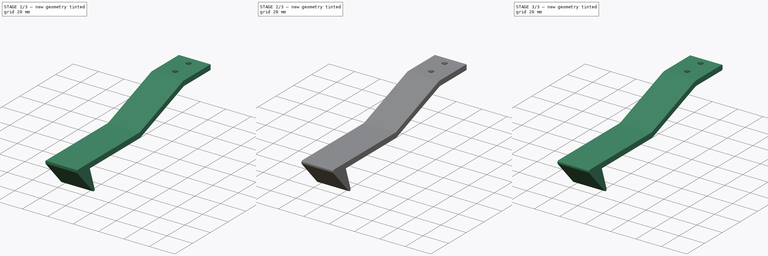
[diagram: build sequence overview — one tinted view per stage of 3, left to right]
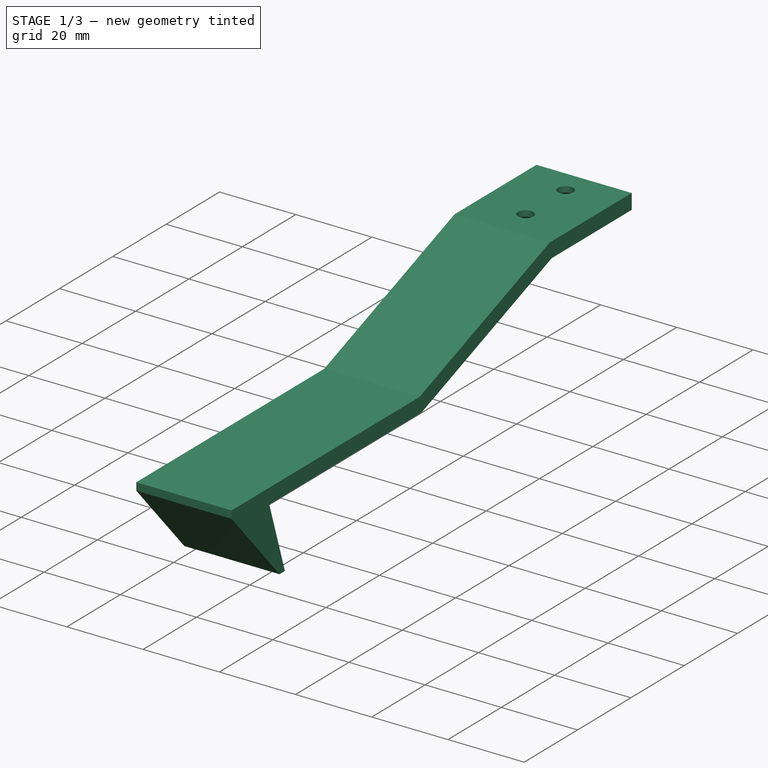
[diagram: stage 1 of 3 — iso view after this stage's code; geometry added in this stage tinted green]
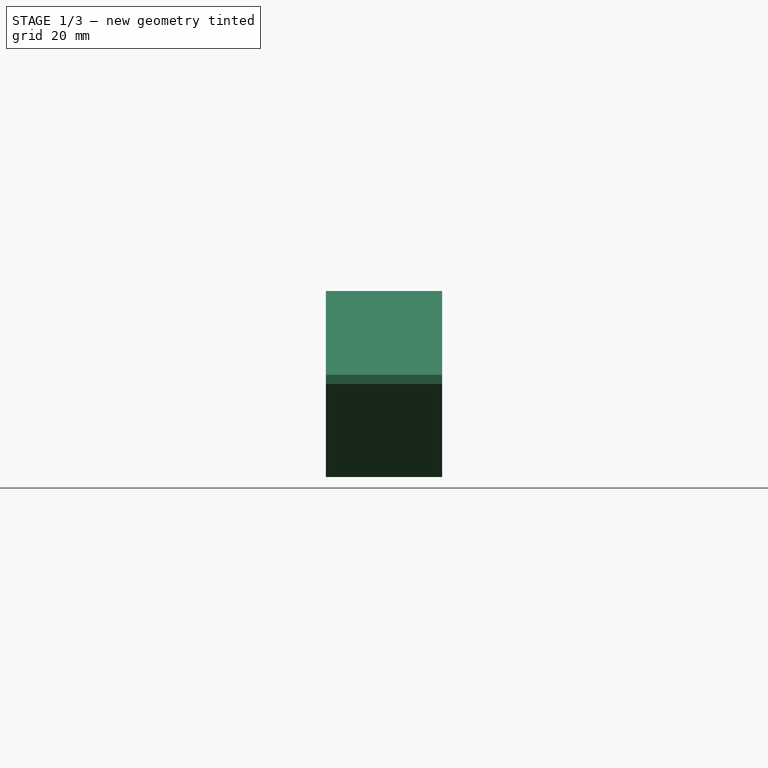
[diagram: stage 1 of 3 — front view after this stage's code; geometry added in this stage tinted green]
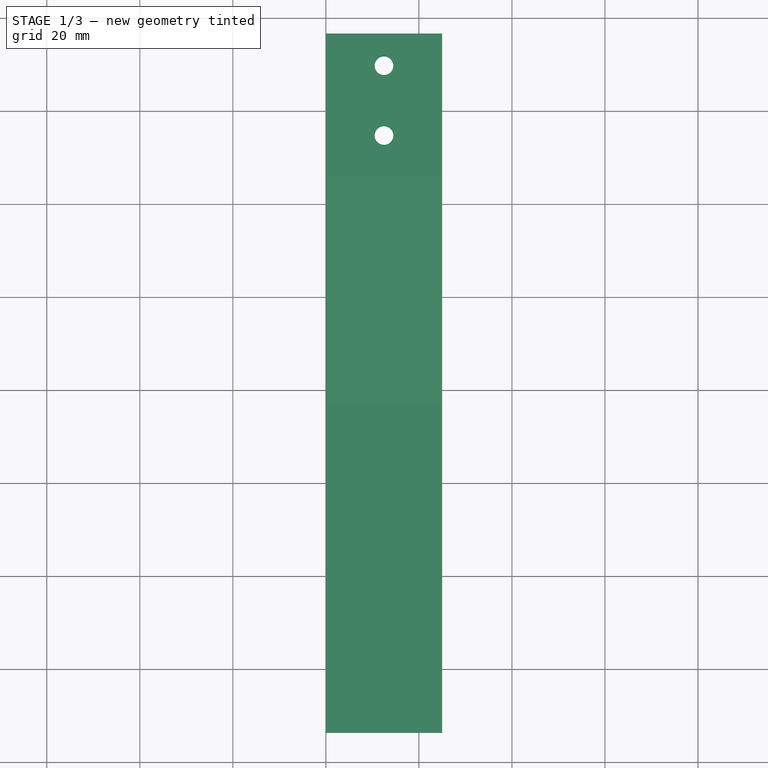
[diagram: stage 1 of 3 — top view after this stage's code; geometry added in this stage tinted green]
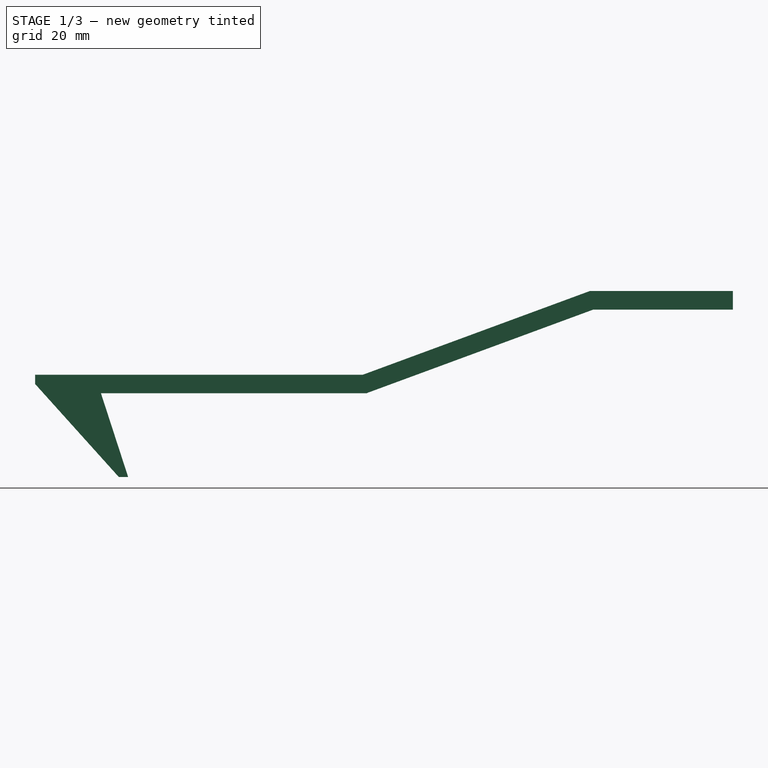
[diagram: stage 1 of 3 — right view after this stage's code; geometry added in this stage tinted green]
FCSTD DOCUMENT  (FreeCAD 0.20RUnknown)
Label: SchubladenSicherung
License: All rights reserved
LicenseURL: http://en.wikipedia.org/wiki/All_rights_reserved
objects: Sketcher::SketchObject×3, PartDesign::Fillet×3, PartDesign::Pad×1, PartDesign::Hole×1, PartDesign::Body×1
note: 14 computed .brp shape members not serialized (recipe doc carries the construction recipe); baked Part::Feature solids carry a one-line shape summary decoded from their .brp

FEATURE [Sketcher::SketchObject] Sketch  label="Schublade"
  FullyConstrained = true
  MapMode = 5
  Placement = pos=(0,0,0) rot=(0.57735,0.57735,0.57735;2.0944rad)
  Support = -> [YZ_Plane]
  sketch-geometry (8):
    g0: LineSegment StartX=53 StartY=0 StartZ=0 EndX=83 EndY=0 EndZ=0
    g1: LineSegment StartX=83 StartY=0 StartZ=0 EndX=83 EndY=-6 EndZ=0
    g2: LineSegment StartX=83 StartY=-6 StartZ=0 EndX=53 EndY=-6 EndZ=0
    g3: LineSegment StartX=53 StartY=-6 StartZ=0 EndX=53 EndY=0 EndZ=0
    g4: LineSegment StartX=42 StartY=-22 StartZ=0 EndX=26 EndY=-22 EndZ=0
    g5: LineSegment StartX=26 StartY=-22 StartZ=0 EndX=26 EndY=-52 EndZ=0
    g6: LineSegment StartX=26 StartY=-52 StartZ=0 EndX=42 EndY=-52 EndZ=0
    g7: LineSegment StartX=42 StartY=-52 StartZ=0 EndX=42 EndY=-22 EndZ=0
  constraints (24):
    c: Coincident(g0,g1)
    c: Coincident(g1,g2)
    c: Coincident(g2,g3)
    c: Coincident(g3,g0)
    c: Horizontal(g0)
    c: Horizontal(g2)
    c: Vertical(g1)
    c: Vertical(g3)
    c: PointOnObject(g0,g-1)
    c: DistanceX(g2,g2) = 30
    c: DistanceY(g1,g1) = 6
    c: DistanceX(g-1,g0) = 53
    c: Coincident(g4,g5)
    c: Coincident(g5,g6)
    c: Coincident(g6,g7)
    c: Coincident(g7,g4)
    c: Horizontal(g4)
    c: Horizontal(g6)
    c: Vertical(g5)
    c: Vertical(g7)
    c: DistanceX(g-1,g4) = 42
    c: DistanceY(g4,g-1) = 22
    c: DistanceX(g6,g6) = 16
    c: DistanceY(g5,g5) = 30
FEATURE [Sketcher::SketchObject] Sketch001  label="Snap"
  ExternalGeometry = -> [Sketch]
  FullyConstrained = true
  MapMode = 5
  Placement = pos=(0,0,0) rot=(0.57735,0.57735,0.57735;2.0944rad)
  Support = -> [YZ_Plane]
  expr: Constraints[13] = .Constraints.width - 2mm
  expr: Constraints[15] = .Constraints.width
  expr: Constraints[24] = .Constraints.width
  expr: Constraints[30] = .Constraints.snap / 2
  expr: Constraints[38] = .Constraints.width - 2mm
  sketch-geometry (13):
    g0: LineSegment StartX=6 StartY=-20 StartZ=0 EndX=6 EndY=-18 EndZ=0
    g1: LineSegment StartX=76.4705 StartY=-18 StartZ=0 EndX=125.286 EndY=0 EndZ=0
    g2: LineSegment StartX=125.286 StartY=0 StartZ=0 EndX=156 EndY=0 EndZ=0
    g3: LineSegment StartX=156 StartY=0 StartZ=0 EndX=156 EndY=-4 EndZ=0
    g4: LineSegment StartX=156 StartY=-4 StartZ=0 EndX=126 EndY=-4 EndZ=0
    g5: LineSegment StartX=126 StartY=-4 StartZ=0 EndX=77.1845 EndY=-22 EndZ=0
    g6: LineSegment StartX=20.1514 StartY=-22 StartZ=0 EndX=77.1845 EndY=-22 EndZ=0
    g7: LineSegment StartX=76.4705 StartY=-18 StartZ=0 EndX=6 EndY=-18 EndZ=0
    g8: LineSegment StartX=76.4705 StartY=-18 StartZ=0 EndX=77.8544 EndY=-21.753 EndZ=0
    g9: LineSegment StartX=83 StartY=-6 StartZ=0 EndX=86.1137 EndY=-14.4442 EndZ=0
    g10: LineSegment StartX=26 StartY=-40 StartZ=0 EndX=20.1514 EndY=-22 EndZ=0
    g11: LineSegment StartX=26 StartY=-40 StartZ=0 EndX=24 EndY=-40 EndZ=0
    g12: LineSegment StartX=24 StartY=-40 StartZ=0 EndX=6 EndY=-20 EndZ=0
  constraints (39):
    c: PointOnObject(g11,g-5)
    c: Coincident(g12,g0)
    c: Vertical(g0)
    c: PointOnObject(g1,g-1)
    c: Coincident(g1,g2)
    c: Horizontal(g2)
    c: Coincident(g2,g3)
    c: Vertical(g3)
    c: Coincident(g3,g4)
    c: Horizontal(g4)
    c: Coincident(g4,g5)
    c: Parallel(g1,g5)
    c: DistanceY(g11,g-5) = 18  'snap'
    c: DistanceY(g0,g0) = 2
    c: DistanceX(g0,g-5) = 20
    c: DistanceY(g3,g3) = 4
    c: Coincident(g6,g5)
    c: Horizontal(g6)
    c: Coincident(g1,g7)
    c: Coincident(g7,g0)
    c: Horizontal(g7)
    c: Coincident(g8,g1)
    c: PointOnObject(g8,g5)
    c: Perpendicular(g8,g1)
    c: Distance(g8) = 4
    c: DistanceX(g0,g2) = 150
    c: DistanceX(g4,g4) = 30
    c: Coincident(g9,g-3)
    c: PointOnObject(g9,g1)
    c: Perpendicular(g1,g9)
    c: Distance(g9) = 9
    c: Coincident(g10,g11)
    c: Coincident(g6,g10)
    c: Angle(g10,g-5) = -0.314159
    c: PointOnObject(g-4,g6)
    c: DistanceY(g5,g1) = 4  'width'
    c: Coincident(g11,g12)
    c: Horizontal(g11)
    c: DistanceX(g11,g11) = 2
FEATURE [PartDesign::Pad] Pad
  Direction = (1,-2e-16,3e-16)
  Length = 25
  Length2 = 10
  Placement = pos=(0,0,0) rot=(0.57735,0.57735,0.57735;2.0944rad)
  Profile = -> Sketch001
  ReferenceAxis = -> Sketch001 [N_Axis]
  Type = 0
FEATURE [Sketcher::SketchObject] Sketch002
  FullyConstrained = false
  MapMode = 5
  Placement = pos=(1.6e-15,-2.2e-15,-4) rot=(0.707107,0.707107,0;3.14159rad)
  sketch-geometry (7):
    g0: Circle CenterX=134.086 CenterY=12.5 CenterZ=0 NormalX=0 NormalY=0 NormalZ=1 AngleXU=0 Radius=2
    g1: Circle CenterX=149.086 CenterY=12.5 CenterZ=0 NormalX=0 NormalY=0 NormalZ=1 AngleXU=0 Radius=2
    g2: LineSegment StartX=134.086 StartY=12.5 StartZ=0 EndX=149.086 EndY=12.5 EndZ=0
    g3: LineSegment StartX=149.086 StartY=12.5 StartZ=0 EndX=149.086 EndY=25 EndZ=0
    g4: LineSegment StartX=149.086 StartY=12.5 StartZ=0 EndX=149.086 EndY=0 EndZ=0
    g5: LineSegment StartX=149.086 StartY=12.5 StartZ=0 EndX=156 EndY=12.5 EndZ=0
    g6: LineSegment StartX=134.086 StartY=12.5 StartZ=0 EndX=127.172 EndY=12.5 EndZ=0
  constraints (16):
    c: Coincident(g2,g0)
    c: Coincident(g2,g1)
    c: Horizontal(g2)
    c: Equal(g0,g1)
    c: DistanceX(g2,g2) = 15
    c: Diameter(g0) = 4
    c: Coincident(g3,g1)
    c: Vertical(g3)
    c: Coincident(g4,g1)
    c: Vertical(g4)
    c: Equal(g3,g4)
    c: Coincident(g5,g1)
    c: Horizontal(g5)
    c: Coincident(g6,g0)
    c: Horizontal(g6)
    c: Equal(g5,g6)
FEATURE [PartDesign::Hole] Hole
  BaseFeature = -> Pad
  CustomThreadClearance = 0
  Depth = 25
  DepthType = 0
  Diameter = 4
  DrillForDepth = false
  DrillPoint = 0
  DrillPointAngle = 118
  HoleCutCountersinkAngle = 90
  HoleCutCustomValues = false
  HoleCutDepth = 3
  HoleCutDiameter = 9
  HoleCutType = 2
  ModelThread = false
  Placement = pos=(0,0,0) rot=(0.57735,0.57735,0.57735;2.0944rad)
  Profile = -> Sketch002
  Tapered = false
  TaperedAngle = 90
  ThreadClass = 0
  ThreadDepth = 25
  ThreadDepthType = 0
  ThreadDirection = 0
  ThreadFit = 1
  ThreadSize = 0
  ThreadType = 0
  Threaded = false
  UseCustomThreadClearance = false
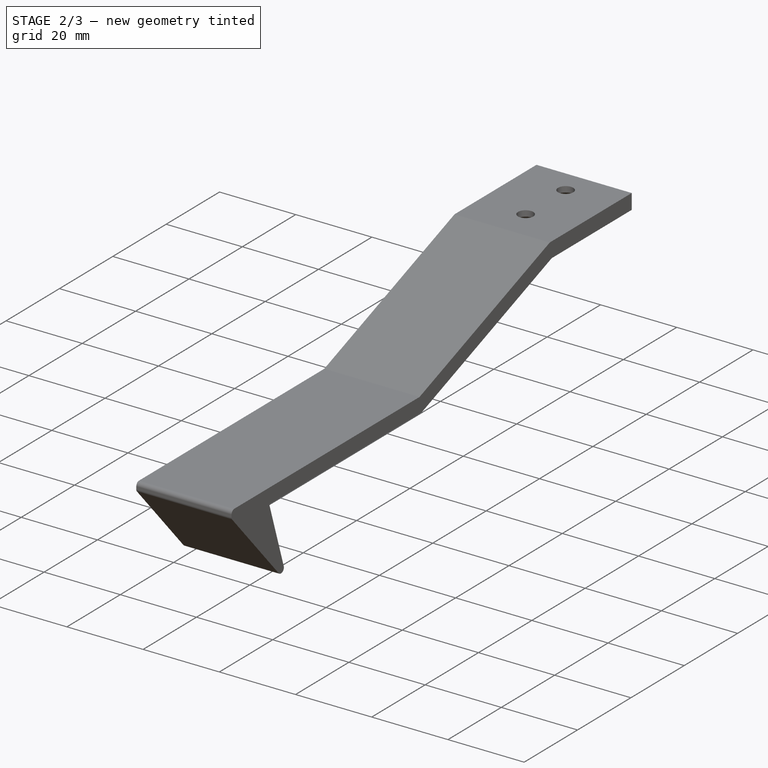
[diagram: stage 2 of 3 — iso view after this stage's code; geometry added in this stage tinted green]
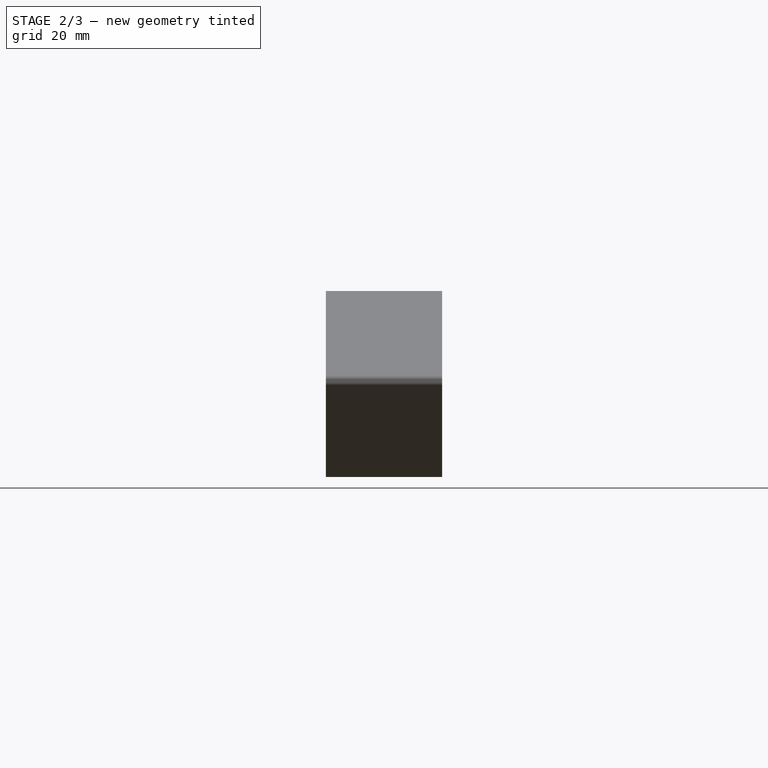
[diagram: stage 2 of 3 — front view after this stage's code; geometry added in this stage tinted green]
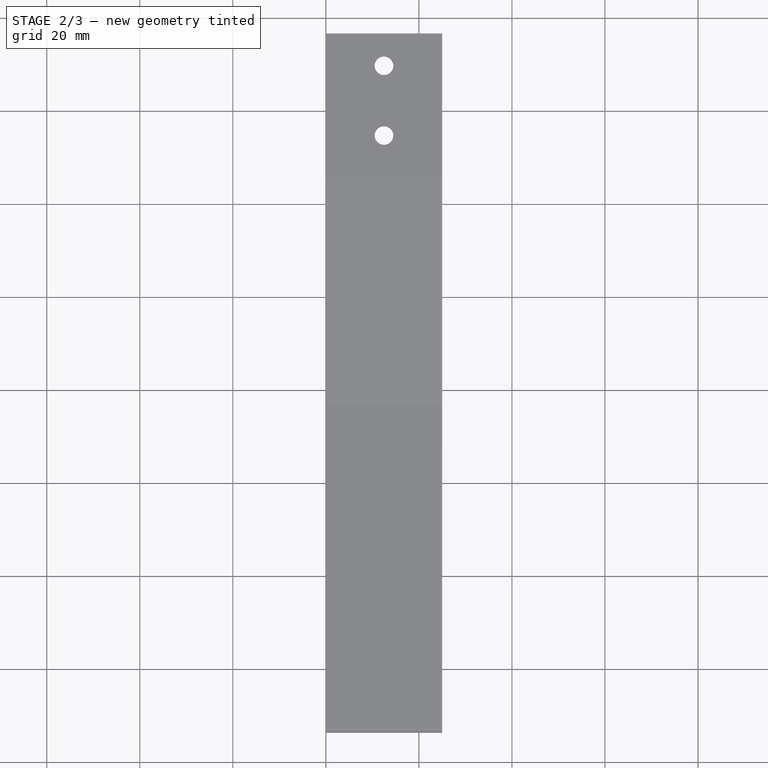
[diagram: stage 2 of 3 — top view after this stage's code; geometry added in this stage tinted green]
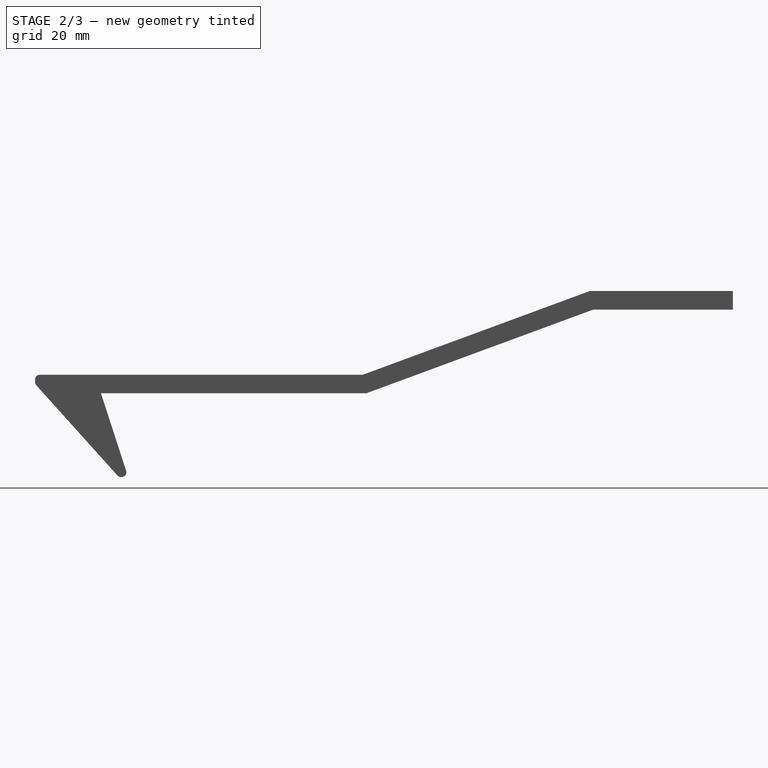
[diagram: stage 2 of 3 — right view after this stage's code; geometry added in this stage tinted green]
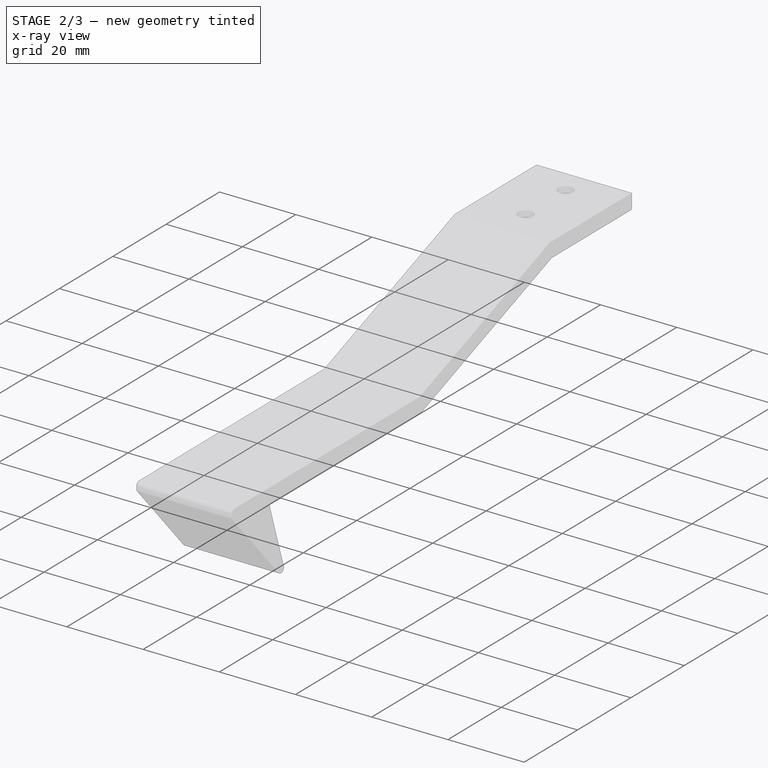
[diagram: stage 2 of 3 — x-ray composite at the iso view; earlier geometry ghosted, this stage's added geometry solid]
FEATURE [PartDesign::Fillet] Fillet  label="FilletHead"
  Base = -> Hole [Edge28,Edge8,Edge2,Edge1]
  BaseFeature = -> Hole
  Placement = pos=(0,0,0) rot=(0.57735,0.57735,0.57735;2.0944rad)
  Radius = 1
  SupportTransform = false
  UseAllEdges = false
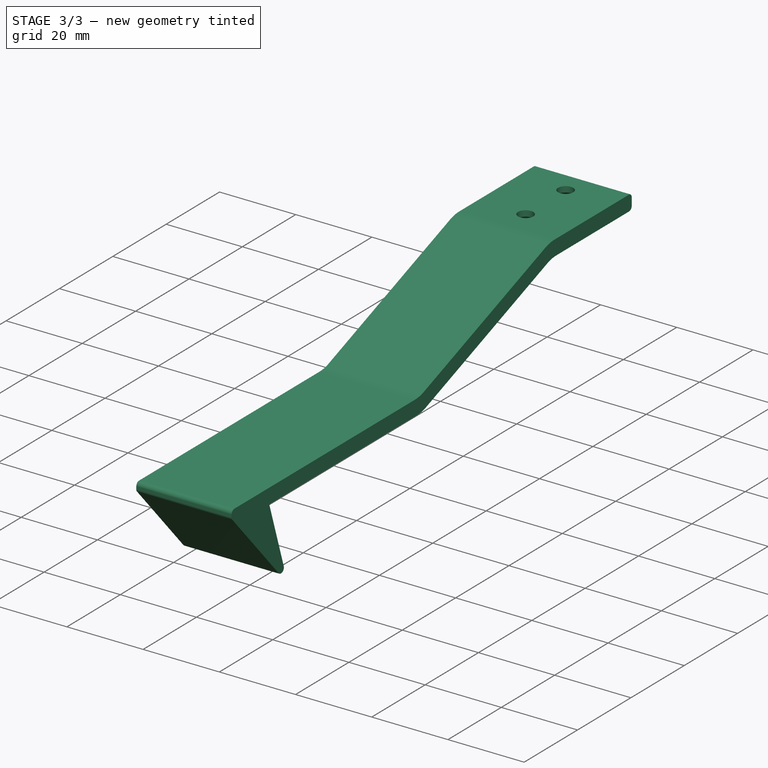
[diagram: stage 3 of 3 — iso view after this stage's code; geometry added in this stage tinted green]
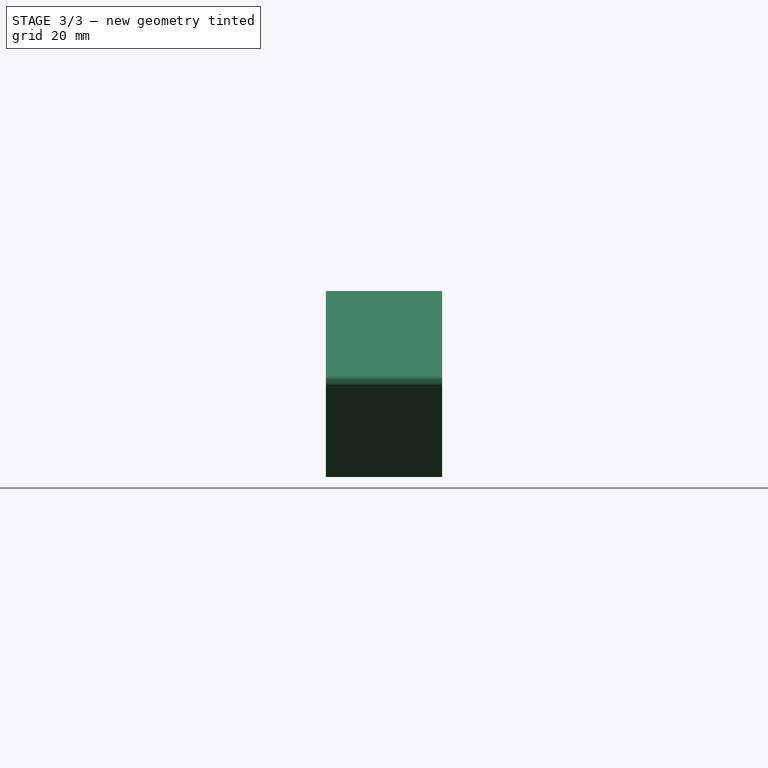
[diagram: stage 3 of 3 — front view after this stage's code; geometry added in this stage tinted green]
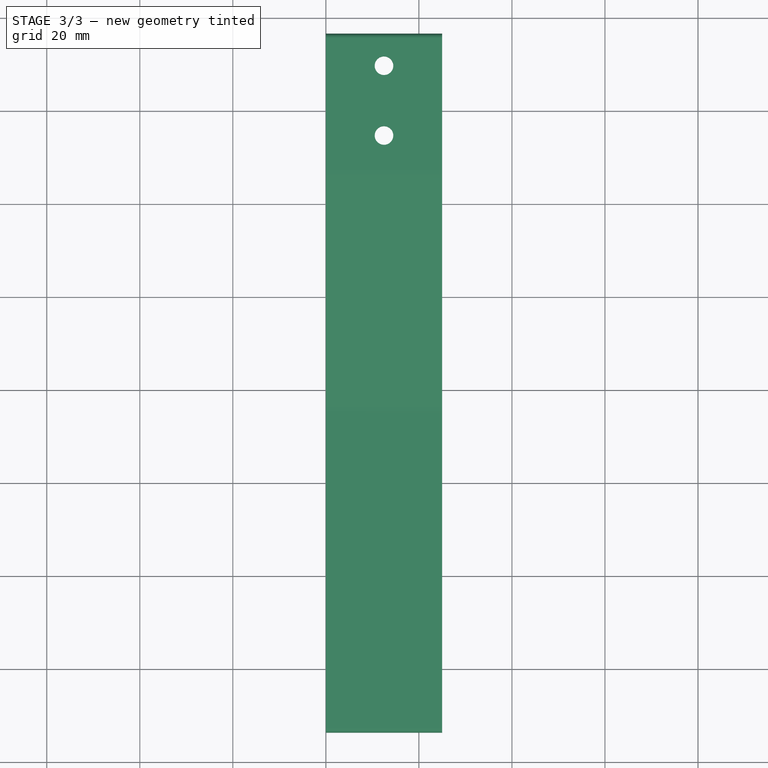
[diagram: stage 3 of 3 — top view after this stage's code; geometry added in this stage tinted green]
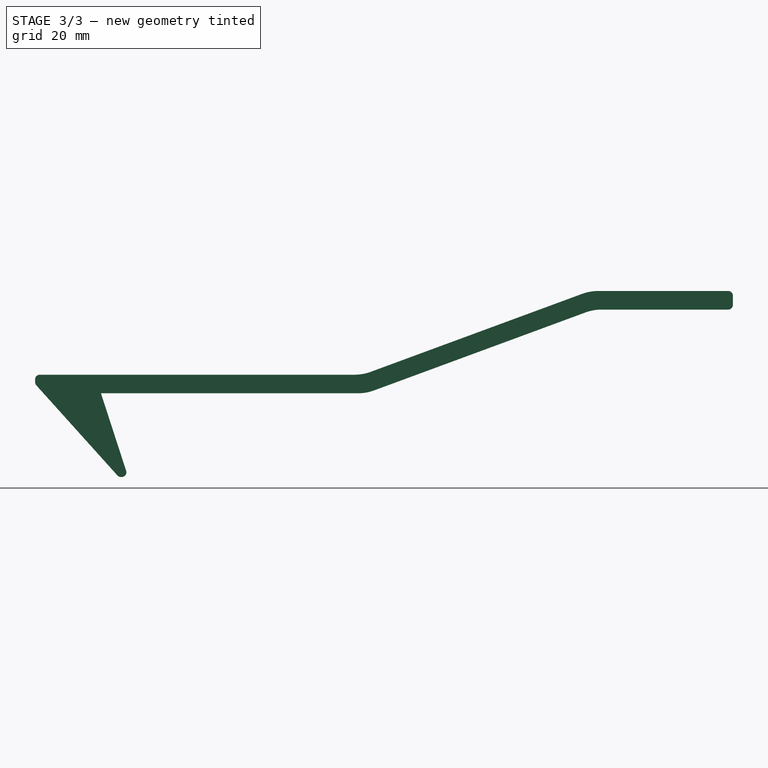
[diagram: stage 3 of 3 — right view after this stage's code; geometry added in this stage tinted green]
FEATURE [PartDesign::Fillet] Fillet001  label="FilletBow"
  Base = -> Fillet [Edge46,Edge47,Edge37,Edge39]
  BaseFeature = -> Fillet
  Placement = pos=(0,0,0) rot=(0.57735,0.57735,0.57735;2.0944rad)
  Radius = 10
  SupportTransform = false
  UseAllEdges = false
FEATURE [PartDesign::Fillet] Fillet002  label="FilletTail"
  Base = -> Fillet001 [Edge35,Edge41]
  BaseFeature = -> Fillet001
  Placement = pos=(0,0,0) rot=(0.57735,0.57735,0.57735;2.0944rad)
  Radius = 1
  SupportTransform = false
  UseAllEdges = false
FEATURE [PartDesign::Body] Body
  Group = -> [Sketch,Sketch001,Pad,Sketch002,Hole,Fillet,Fillet001,Fillet002]
  Origin = -> Origin
  Tip = -> Fillet002
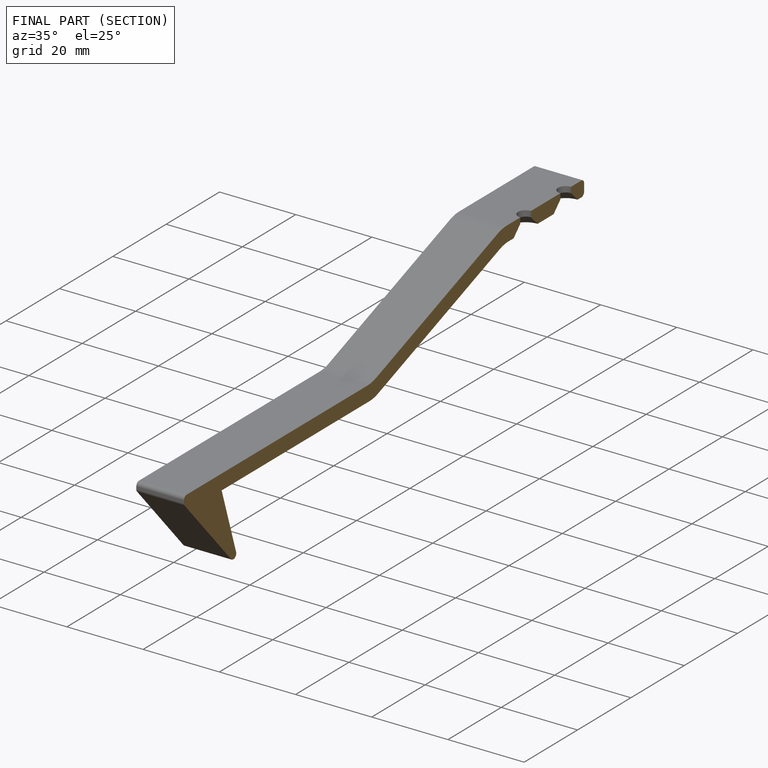
[diagram: finished part — half-section view (interior)]
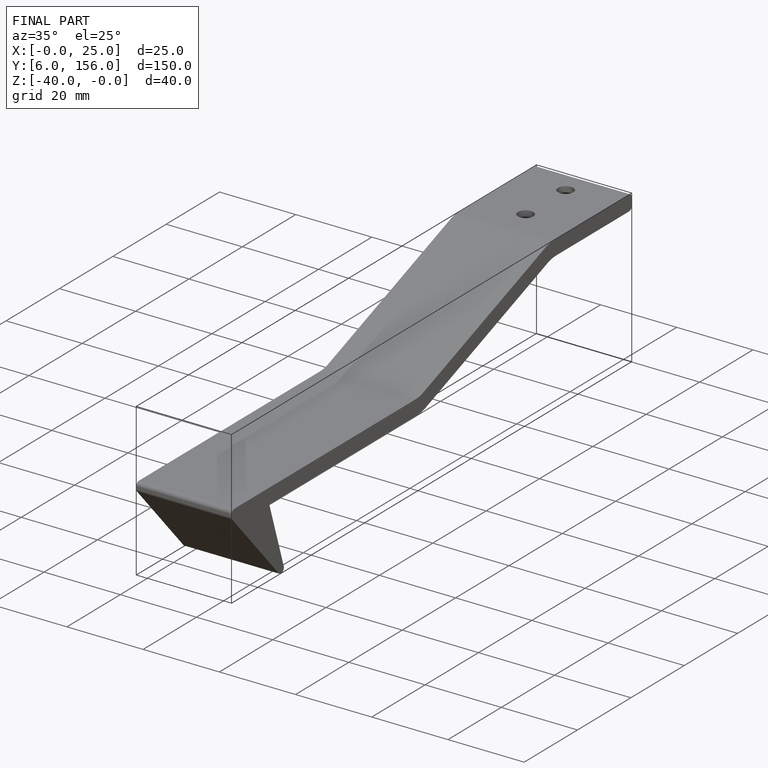
[diagram: finished part — iso view with bounding-box wireframe]
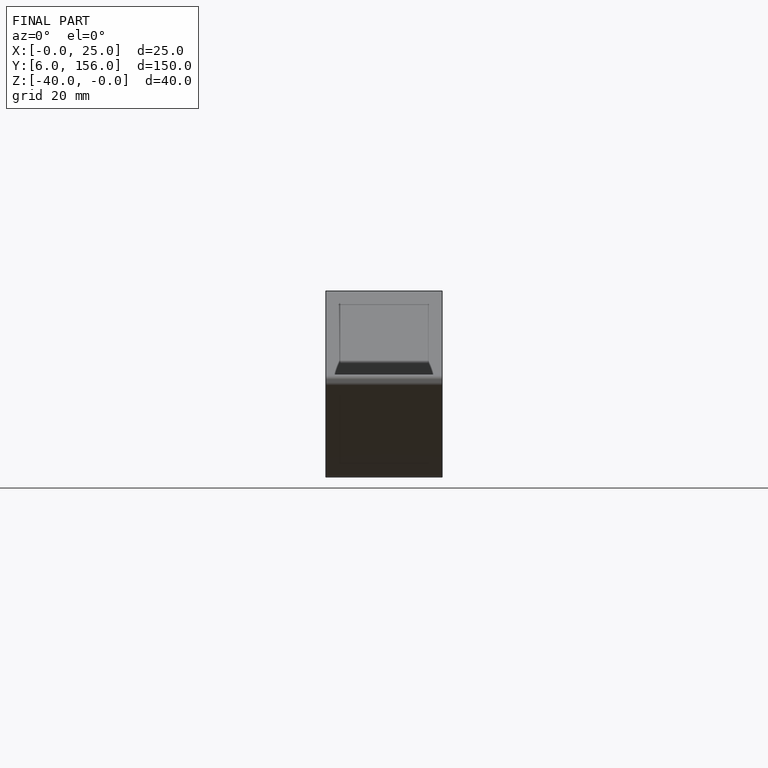
[diagram: finished part — front view with bounding-box wireframe]
